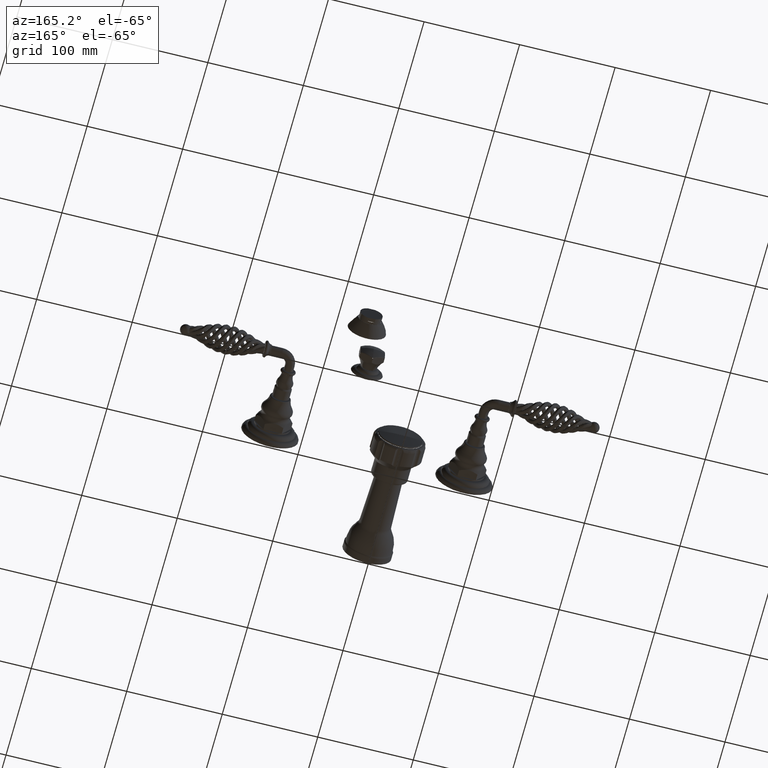
[diagram: clean part render]
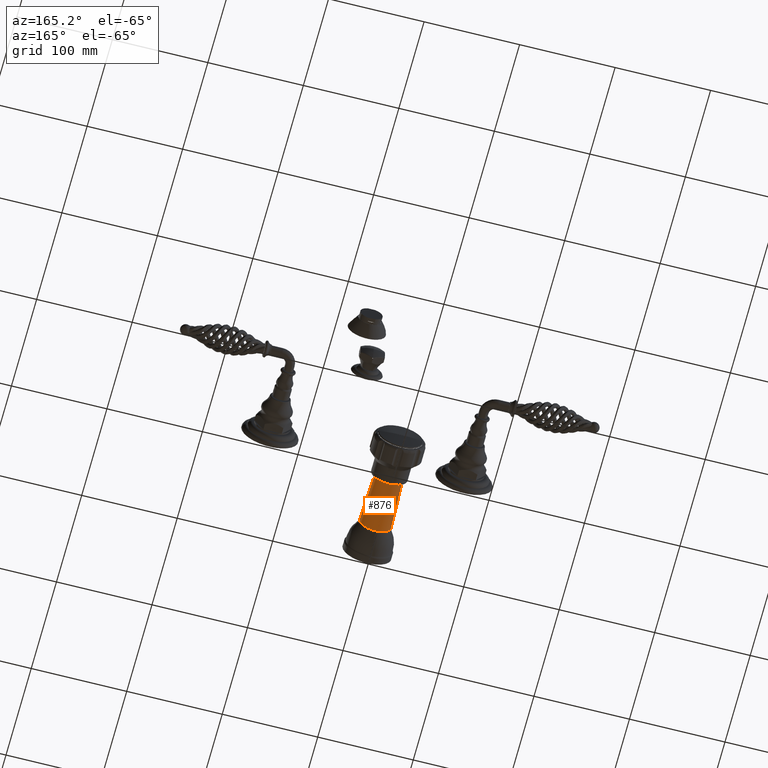
[diagram: same view with one face highlighted and labeled with its STEP entity id]
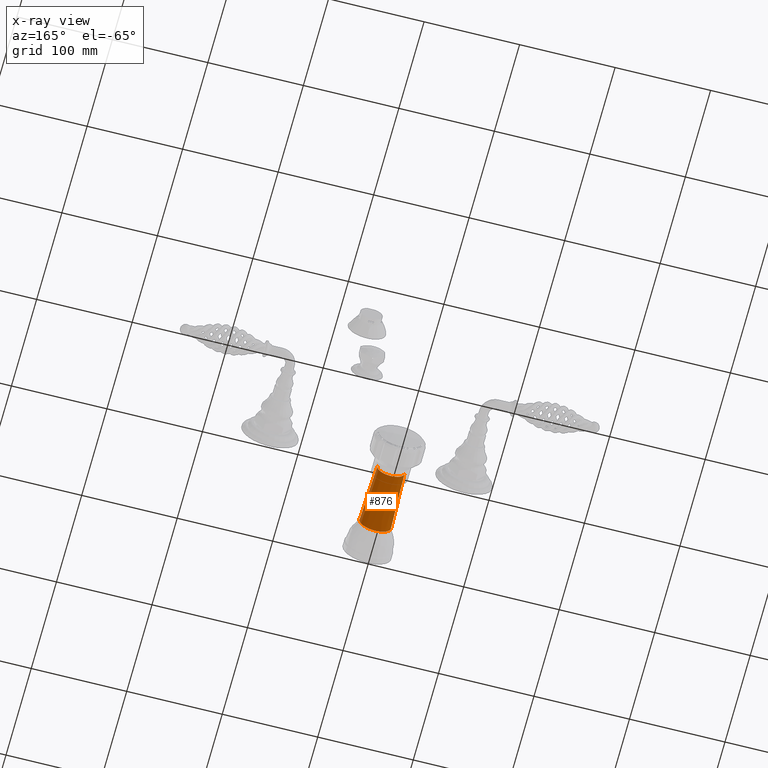
[diagram: x-ray of the same camera — body ghosted, the highlighted face saturated]
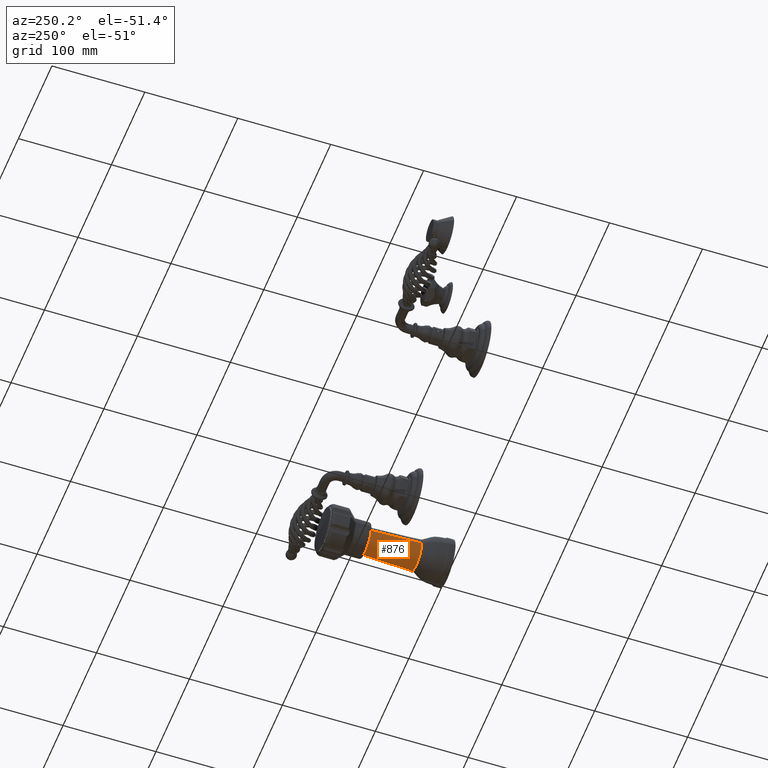
[diagram: same view with one face highlighted and labeled with its STEP entity id]
A machine part, auxiliary view. The second image highlights one B-rep face of the part: STEP entity #876.
The next image is the same camera in x-ray: the body ghosted, the highlighted face saturated — about 0% of this face is hidden behind the body in this view.
A second angle (auxiliary view) of the same face is appended — the face is thin or edge-on in the first view.
In plain terms, the highlighted conical surface has half-angle 2.15 deg.
Its self-contained STEP definition (entity closure, byte-faithful):
#659=DIRECTION('',(-3.752296353159E-2,9.992957656309E-1,-8.967455820333E-13));
#660=VECTOR('',#659,2.448383462922E0);
#661=CARTESIAN_POINT('',(6.568706033906E-1,1.102557772861E0,-8.999999999998E0));
#662=LINE('',#661,#660);
#663=CARTESIAN_POINT('',(0.E0,3.549217E0,-9.E0));
#664=DIRECTION('',(0.E0,1.E0,0.E0));
#665=DIRECTION('',(1.E0,0.E0,0.E0));
#666=AXIS2_PLACEMENT_3D('',#663,#664,#665);
#668=DIRECTION('',(3.752296353159E-2,9.992957656309E-1,8.967455820333E-13));
#669=VECTOR('',#668,2.448383462922E0);
#670=CARTESIAN_POINT('',(-6.568706033906E-1,1.102557772861E0,
-9.000000000002E0));
#671=LINE('',#670,#669);
#672=CARTESIAN_POINT('',(0.E0,1.102557773058E0,-9.E0));
#673=DIRECTION('',(0.E0,-1.E0,0.E0));
#674=DIRECTION('',(-1.E0,0.E0,0.E0));
#675=AXIS2_PLACEMENT_3D('',#672,#673,#674);
#714=CARTESIAN_POINT('',(5.65E-1,3.549217E0,-9.E0));
#715=CARTESIAN_POINT('',(-5.65E-1,3.549217E0,-9.E0));
#716=VERTEX_POINT('',#714);
#717=VERTEX_POINT('',#715);
#718=CARTESIAN_POINT('',(-6.568706033832E-1,1.102557773058E0,-9.E0));
#719=CARTESIAN_POINT('',(6.568706033832E-1,1.102557773058E0,-9.E0));
#720=VERTEX_POINT('',#718);
#721=VERTEX_POINT('',#719);
#863=CARTESIAN_POINT('',(0.E0,2.325887380700E0,-9.E0));
#864=DIRECTION('',(0.E0,-1.E0,0.E0));
#865=DIRECTION('',(-1.E0,0.E0,0.E0));
#866=AXIS2_PLACEMENT_3D('',#863,#864,#865);
#867=CONICAL_SURFACE('',#866,6.109353019105E-1,2.150412266963E0);
#869=ORIENTED_EDGE('',*,*,#868,.T.);
#870=ORIENTED_EDGE('',*,*,#858,.T.);
#872=ORIENTED_EDGE('',*,*,#871,.T.);
#873=ORIENTED_EDGE('',*,*,#854,.F.);
#874=EDGE_LOOP('',(#869,#870,#872,#873));
#875=FACE_OUTER_BOUND('',#874,.F.);
#876=ADVANCED_FACE('',(#875),#867,.T.);
#667=CIRCLE('',#666,5.65E-1);
#676=CIRCLE('',#675,6.568706033832E-1);
#854=EDGE_CURVE('',#720,#717,#671,.T.);
#858=EDGE_CURVE('',#721,#716,#662,.T.);
#868=EDGE_CURVE('',#720,#721,#676,.T.);
#871=EDGE_CURVE('',#716,#717,#667,.T.);